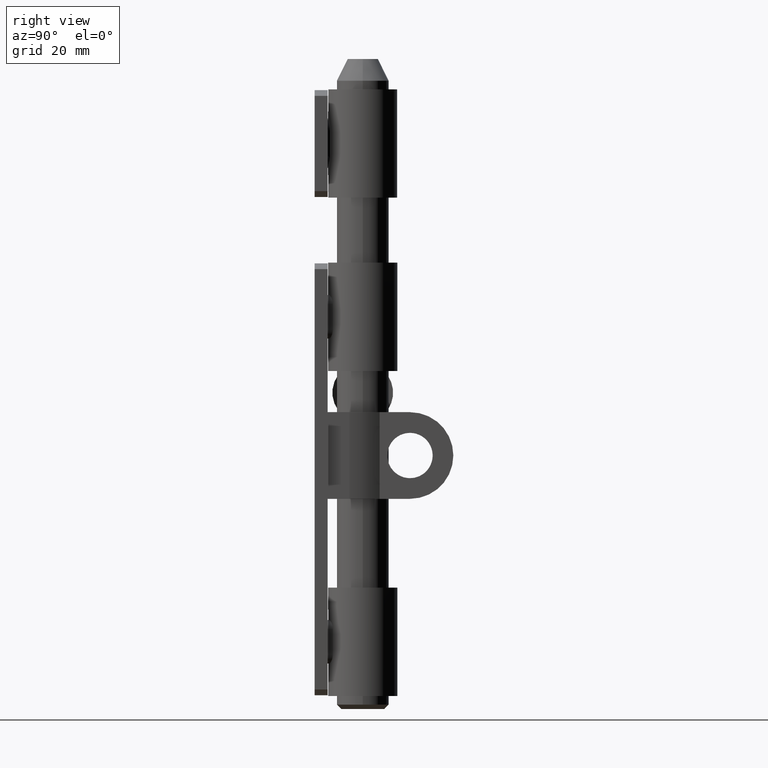
[diagram: clean part render]
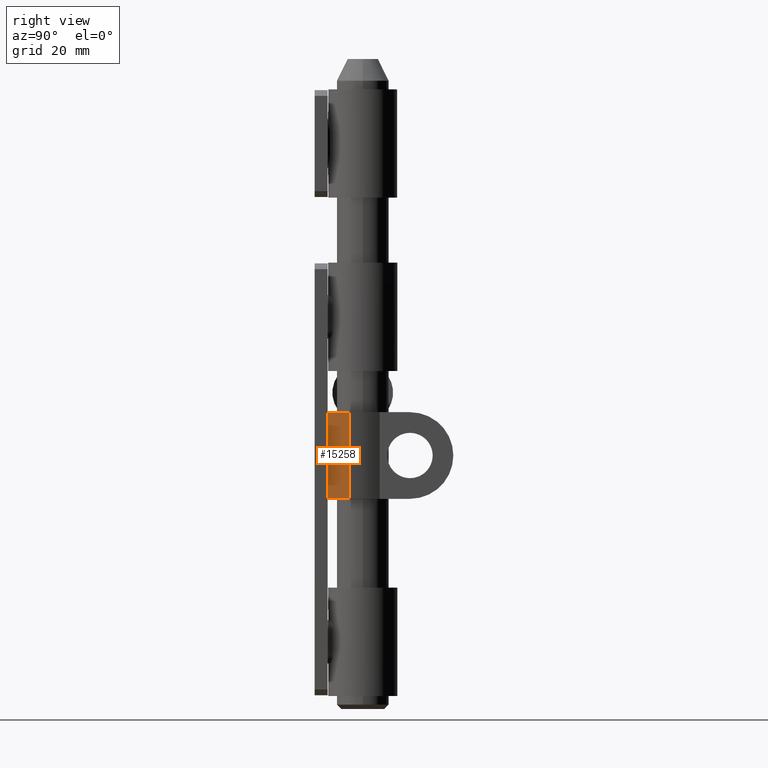
[diagram: same view with one face highlighted and labeled with its STEP entity id]
A machine part, right view. The second image highlights one B-rep face of the part: STEP entity #15258.
In plain terms, the highlighted planar face has unit normal (1, 0, 0).
Its self-contained STEP definition (entity closure, byte-faithful):
#838 = DIRECTION ( 'NONE',  ( 0.000000000000000000, 0.000000000000000000, -1.000000000000000000 ) ) ;
#1079 = ORIENTED_EDGE ( 'NONE', *, *, #11344, .T. ) ;
#1535 = FACE_OUTER_BOUND ( 'NONE', #14807, .T. ) ;
#1574 = AXIS2_PLACEMENT_3D ( 'NONE', #11669, #3186, #838 ) ;
#1811 = VERTEX_POINT ( 'NONE', #7443 ) ;
#1986 = ORIENTED_EDGE ( 'NONE', *, *, #3717, .T. ) ;
#2111 = DIRECTION ( 'NONE',  ( -0.000000000000000000, -1.387778780781445676E-16, 1.000000000000000000 ) ) ;
#2115 = VECTOR ( 'NONE', #2111, 1000.000000000000000 ) ;
#2457 = VECTOR ( 'NONE', #14831, 1000.000000000000000 ) ;
#3186 = DIRECTION ( 'NONE',  ( 1.000000000000000000, -0.000000000000000000, 0.000000000000000000 ) ) ;
#3717 = EDGE_CURVE ( 'NONE', #1811, #6127, #8515, .T. ) ;
#4079 = CARTESIAN_POINT ( 'NONE',  ( 11.00000000000000000, 4.999999999999998224, 15.50000000000000178 ) ) ;
#4089 = CARTESIAN_POINT ( 'NONE',  ( 11.00000000000000000, 5.000000000000000888, -4.499999999999999112 ) ) ;
#4288 = LINE ( 'NONE', #8281, #11766 ) ;
#4560 = EDGE_CURVE ( 'NONE', #13898, #8824, #7363, .T. ) ;
#5341 = VECTOR ( 'NONE', #14773, 1000.000000000000000 ) ;
#6127 = VERTEX_POINT ( 'NONE', #4089 ) ;
#6451 = CARTESIAN_POINT ( 'NONE',  ( 11.00000000000000000, -2.151057110211241192E-15, 15.50000000000000178 ) ) ;
#7363 = LINE ( 'NONE', #6451, #2457 ) ;
#7443 = CARTESIAN_POINT ( 'NONE',  ( 11.00000000000000000, 0.000000000000000000, -4.499999999999997335 ) ) ;
#8231 = DIRECTION ( 'NONE',  ( -0.000000000000000000, -1.387778780781445676E-16, 1.000000000000000000 ) ) ;
#8281 = CARTESIAN_POINT ( 'NONE',  ( 11.00000000000000000, 6.245004513516503568E-16, -4.499999999999999112 ) ) ;
#8515 = LINE ( 'NONE', #14881, #5341 ) ;
#8824 = VERTEX_POINT ( 'NONE', #4079 ) ;
#9319 = CARTESIAN_POINT ( 'NONE',  ( 11.00000000000000000, 5.000000000000000888, -4.499999999999999112 ) ) ;
#9343 = EDGE_CURVE ( 'NONE', #1811, #13898, #4288, .T. ) ;
#10064 = PLANE ( 'NONE',  #1574 ) ;
#10291 = ORIENTED_EDGE ( 'NONE', *, *, #9343, .F. ) ;
#11059 = CARTESIAN_POINT ( 'NONE',  ( 11.00000000000000000, -2.151057110211241192E-15, 15.50000000000000178 ) ) ;
#11344 = EDGE_CURVE ( 'NONE', #6127, #8824, #11692, .T. ) ;
#11669 = CARTESIAN_POINT ( 'NONE',  ( 11.00000000000000000, 6.245004513516503568E-16, -4.499999999999999112 ) ) ;
#11692 = LINE ( 'NONE', #9319, #2115 ) ;
#11766 = VECTOR ( 'NONE', #8231, 1000.000000000000000 ) ;
#13898 = VERTEX_POINT ( 'NONE', #11059 ) ;
#14079 = ORIENTED_EDGE ( 'NONE', *, *, #4560, .F. ) ;
#14773 = DIRECTION ( 'NONE',  ( 0.000000000000000000, 1.000000000000000000, 0.000000000000000000 ) ) ;
#14807 = EDGE_LOOP ( 'NONE', ( #14079, #10291, #1986, #1079 ) ) ;
#14831 = DIRECTION ( 'NONE',  ( 0.000000000000000000, 1.000000000000000000, 0.000000000000000000 ) ) ;
#14881 = CARTESIAN_POINT ( 'NONE',  ( 11.00000000000000000, 6.245004513516503568E-16, -4.499999999999999112 ) ) ;
#15258 = ADVANCED_FACE ( 'NONE', ( #1535 ), #10064, .T. ) ;